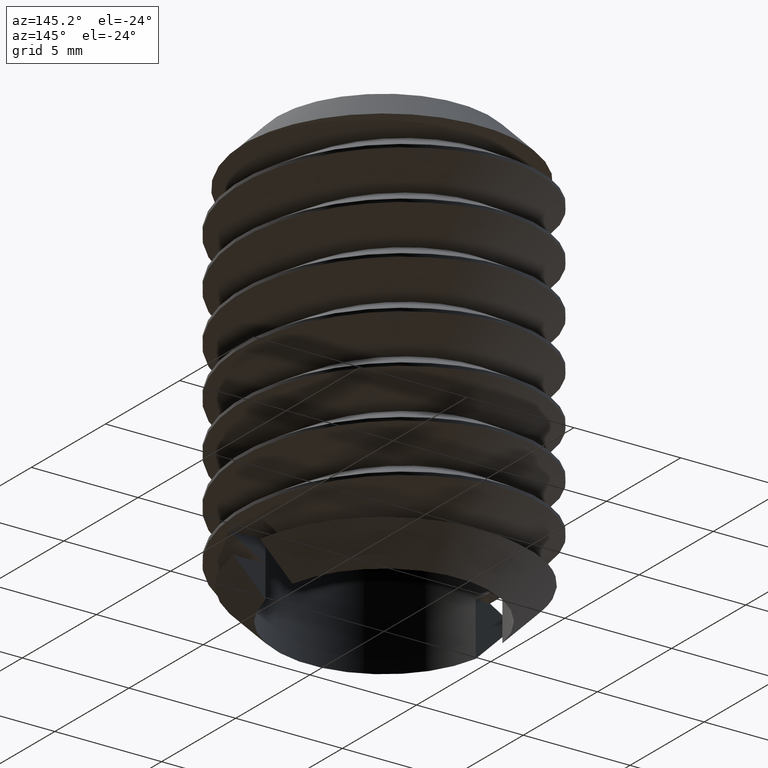
[diagram: clean part render]
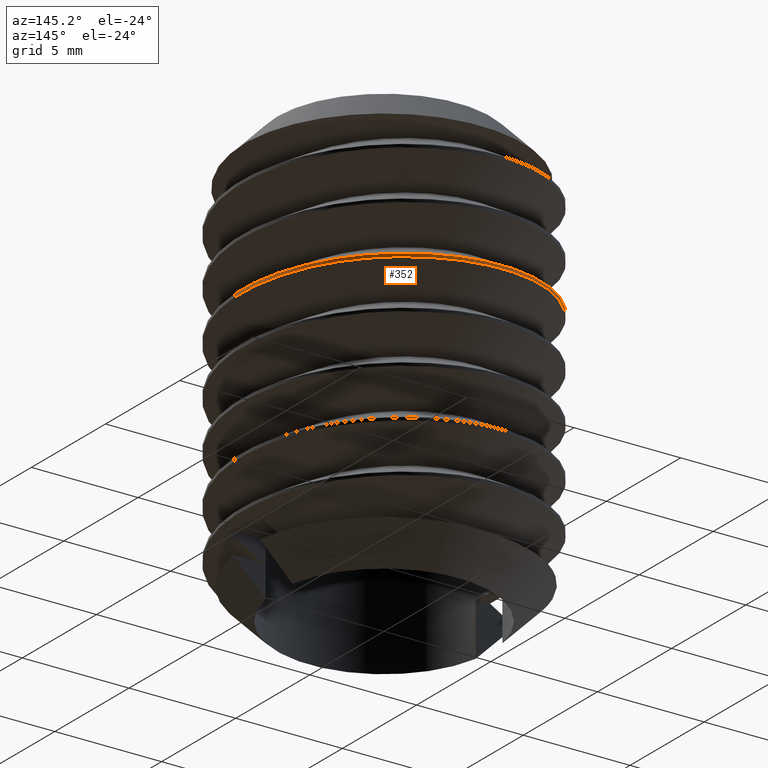
[diagram: same view with one face highlighted and labeled with its STEP entity id]
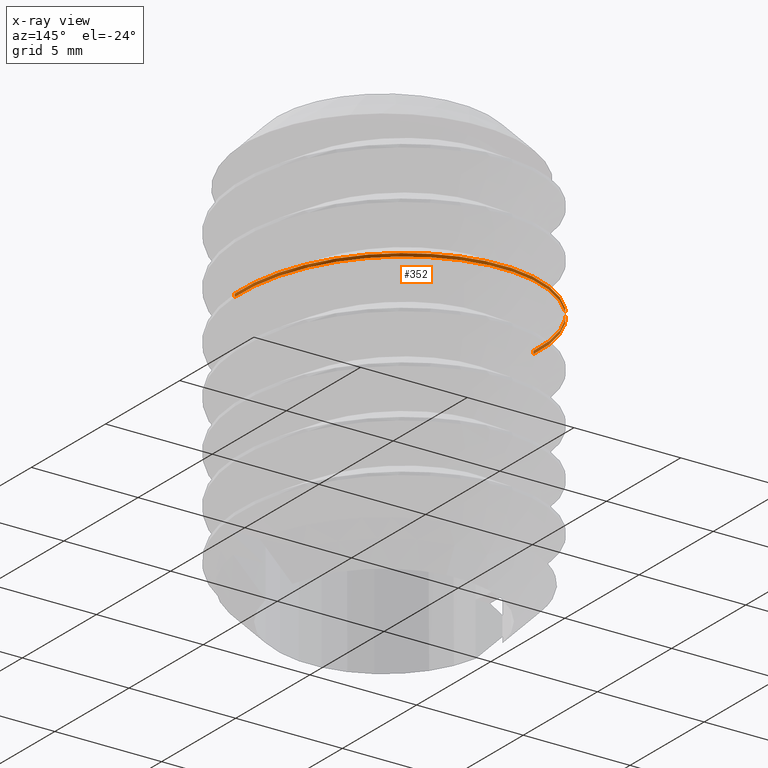
[diagram: x-ray of the same camera — body ghosted, the highlighted face saturated]
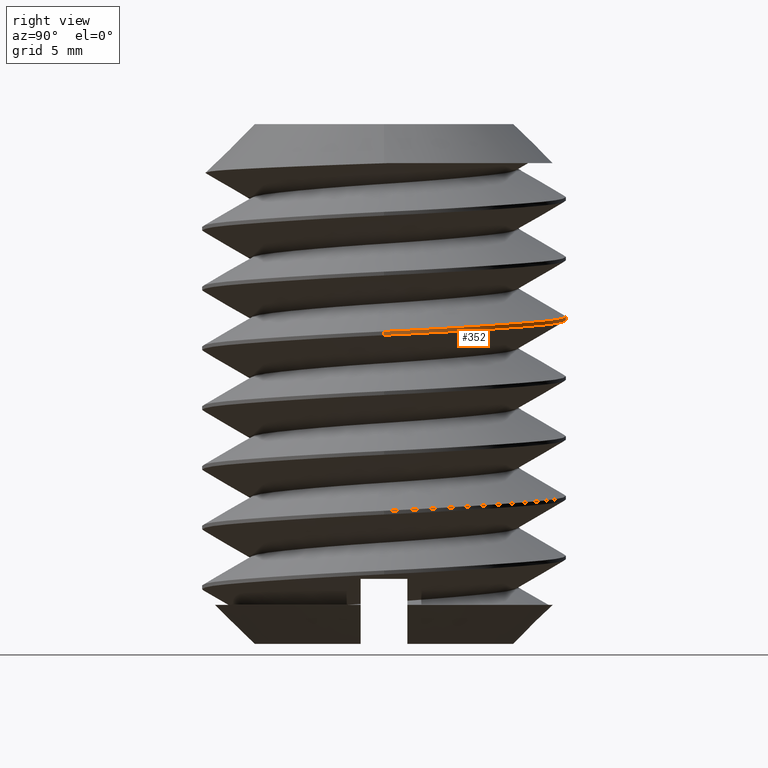
[diagram: same view with one face highlighted and labeled with its STEP entity id]
A machine part, auxiliary view. The second image highlights one B-rep face of the part: STEP entity #352.
The next image is the same camera in x-ray: the body ghosted, the highlighted face saturated — about 5% of this face is hidden behind the body in this view.
A second angle (right view) of the same face is appended — the face is thin or edge-on in the first view.
In plain terms, the highlighted cylindrical surface (partial cylindrical patch) has radius 7 mm, axis along (0, 0, 1).
Its self-contained STEP definition (entity closure, byte-faithful):
#8 = EDGE_LOOP ( 'NONE', ( #1187, #1188, #1189, #1190 ) ) ;
#106 = LINE ( 'NONE', #1635, #108 ) ;
#108 = VECTOR ( 'NONE', #1636, 1000.000000000000000 ) ;
#109 = LINE ( 'NONE', #1658, #110 ) ;
#110 = VECTOR ( 'NONE', #1659, 1000.000000000000000 ) ;
#142 = FACE_OUTER_BOUND ( 'NONE', #8, .T. ) ;
#143 = CYLINDRICAL_SURFACE ( 'NONE', #384, 6.999999999999999100 ) ;
#296 = EDGE_CURVE ( 'NONE', #1092, #1116, #106, .T. ) ;
#299 = EDGE_CURVE ( 'NONE', #1116, #1098, #2315, .T. ) ;
#300 = EDGE_CURVE ( 'NONE', #1139, #1098, #109, .T. ) ;
#301 = EDGE_CURVE ( 'NONE', #1139, #1092, #2323, .T. ) ;
#352 = ADVANCED_FACE ( 'NONE', ( #142 ), #143, .T. ) ;
#384 = AXIS2_PLACEMENT_3D ( 'NONE', #1777, #1778, #1779 ) ;
#983 = CARTESIAN_POINT ( 'NONE',  ( 6.999999999999999100, 2.096719583698234600E-013, -8.122279497512668200 ) ) ;
#989 = CARTESIAN_POINT ( 'NONE',  ( -6.999999999999999100, -2.105292111292266600E-013, -6.827720502487280500 ) ) ;
#1006 = CARTESIAN_POINT ( 'NONE',  ( 6.999999999999999100, 2.096719583698235100E-013, -7.977720502487279900 ) ) ;
#1027 = CARTESIAN_POINT ( 'NONE',  ( -6.999999999999999100, -2.105292111292266100E-013, -6.972279497512672300 ) ) ;
#1092 = VERTEX_POINT ( 'NONE', #983 ) ;
#1098 = VERTEX_POINT ( 'NONE', #989 ) ;
#1116 = VERTEX_POINT ( 'NONE', #1006 ) ;
#1139 = VERTEX_POINT ( 'NONE', #1027 ) ;
#1187 = ORIENTED_EDGE ( 'NONE', *, *, #301, .F. ) ;
#1188 = ORIENTED_EDGE ( 'NONE', *, *, #300, .T. ) ;
#1189 = ORIENTED_EDGE ( 'NONE', *, *, #299, .F. ) ;
#1190 = ORIENTED_EDGE ( 'NONE', *, *, #296, .F. ) ;
#1635 = CARTESIAN_POINT ( 'NONE',  ( 6.999999999999999100, 0.0000000000000000000, -20.00000000000000000 ) ) ;
#1636 = DIRECTION ( 'NONE',  ( 0.0000000000000000000, 0.0000000000000000000, 1.000000000000000000 ) ) ;
#1651 = CARTESIAN_POINT ( 'NONE',  ( 6.999999999999999100, 2.096719583698235100E-013, -7.977720502487279900 ) ) ;
#1652 = CARTESIAN_POINT ( 'NONE',  ( 6.999999999999876500, 4.041451884327592800, -7.786053835820613500 ) ) ;
#1653 = CARTESIAN_POINT ( 'NONE',  ( 3.499999999999813500, 6.062177826491177900, -7.594387169153946200 ) ) ;
#1654 = CARTESIAN_POINT ( 'NONE',  ( -2.435931285468820700E-013, 8.082903768654759300, -7.402720502487281500 ) ) ;
#1655 = CARTESIAN_POINT ( 'NONE',  ( -3.500000000000184300, 6.062177826490964700, -7.211053835820612400 ) ) ;
#1656 = CARTESIAN_POINT ( 'NONE',  ( -7.000000000000121700, 4.041451884327167400, -7.019387169153946900 ) ) ;
#1657 = CARTESIAN_POINT ( 'NONE',  ( -6.999999999999999100, -2.105292111292266600E-013, -6.827720502487280500 ) ) ;
#1658 = CARTESIAN_POINT ( 'NONE',  ( -6.999999999999999100, 8.572527594031472200E-016, -20.00000000000000000 ) ) ;
#1659 = DIRECTION ( 'NONE',  ( 0.0000000000000000000, 0.0000000000000000000, 1.000000000000000000 ) ) ;
#1660 = CARTESIAN_POINT ( 'NONE',  ( -6.999999999999999100, -2.105292111292266100E-013, -6.972279497512672300 ) ) ;
#1661 = CARTESIAN_POINT ( 'NONE',  ( -7.000000000000135900, 4.041451884327159400, -7.163946164179337800 ) ) ;
#1662 = CARTESIAN_POINT ( 'NONE',  ( -3.500000000000183900, 6.062177826490964700, -7.355612830846005100 ) ) ;
#1663 = CARTESIAN_POINT ( 'NONE',  ( -2.435931285468820700E-013, 8.082903768654761100, -7.547279497512672500 ) ) ;
#1664 = CARTESIAN_POINT ( 'NONE',  ( 3.499999999999813500, 6.062177826491177000, -7.738946164179337100 ) ) ;
#1665 = CARTESIAN_POINT ( 'NONE',  ( 6.999999999999862300, 4.041451884327601700, -7.930612830846005300 ) ) ;
#1666 = CARTESIAN_POINT ( 'NONE',  ( 6.999999999999999100, 2.096719583698234600E-013, -8.122279497512668200 ) ) ;
#1777 = CARTESIAN_POINT ( 'NONE',  ( 0.0000000000000000000, 0.0000000000000000000, -20.00000000000000000 ) ) ;
#1778 = DIRECTION ( 'NONE',  ( 0.0000000000000000000, 0.0000000000000000000, 1.000000000000000000 ) ) ;
#1779 = DIRECTION ( 'NONE',  ( 1.000000000000000000, 0.0000000000000000000, 0.0000000000000000000 ) ) ;
#2315 =( BOUNDED_CURVE ( )  B_SPLINE_CURVE ( 2, ( #1651, #1652, #1653, #1654, #1655, #1656, #1657 ),
 .UNSPECIFIED., .F., .F. ) 
 B_SPLINE_CURVE_WITH_KNOTS ( ( 3, 2, 2, 3 ),
 ( 0.6363636363636363500, 0.6515151515151514900, 0.6666666666666667400, 0.6818181818181818800 ),
 .UNSPECIFIED. ) 
 CURVE ( )  GEOMETRIC_REPRESENTATION_ITEM ( )  RATIONAL_B_SPLINE_CURVE ( ( 1.000000000000000000, 0.8660254037844387100, 1.000000000000000000, 0.8660254037844387100, 1.000000000000000000, 0.8660254037844387100, 1.000000000000000000 ) ) 
 REPRESENTATION_ITEM ( '' )  );
#2323 =( BOUNDED_CURVE ( )  B_SPLINE_CURVE ( 2, ( #1660, #1661, #1662, #1663, #1664, #1665, #1666 ),
 .UNSPECIFIED., .F., .F. ) 
 B_SPLINE_CURVE_WITH_KNOTS ( ( 3, 2, 2, 3 ),
 ( 0.4090909090909090600, 0.4242424242424242000, 0.4393939393939393400, 0.4545454545454544700 ),
 .UNSPECIFIED. ) 
 CURVE ( )  GEOMETRIC_REPRESENTATION_ITEM ( )  RATIONAL_B_SPLINE_CURVE ( ( 1.000000000000000700, 0.8660254037844381500, 1.000000000000000000, 0.8660254037844386000, 1.000000000000000000, 0.8660254037844390400, 0.9999999999999995600 ) ) 
 REPRESENTATION_ITEM ( '' )  );